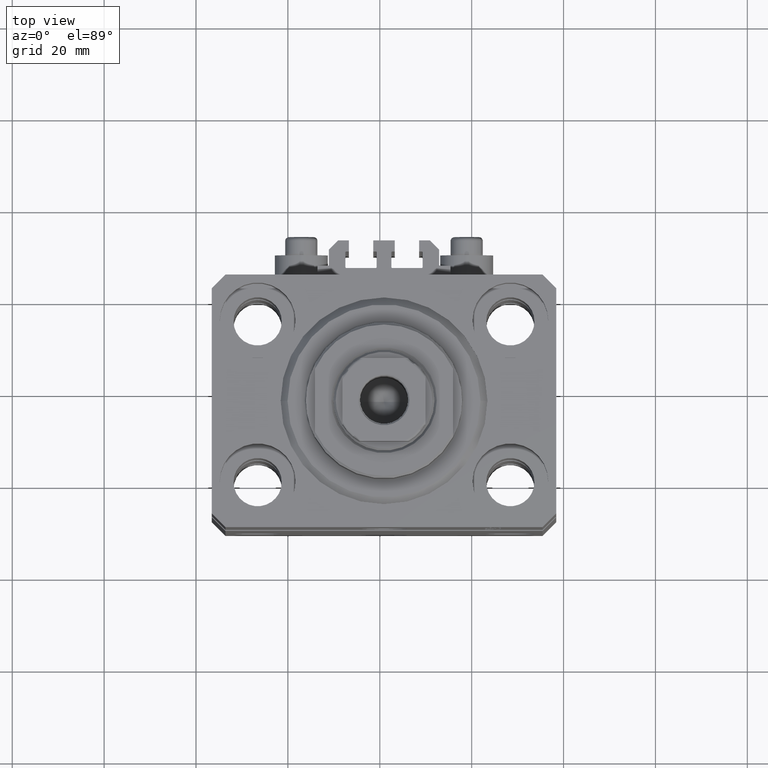
[diagram: clean part render]
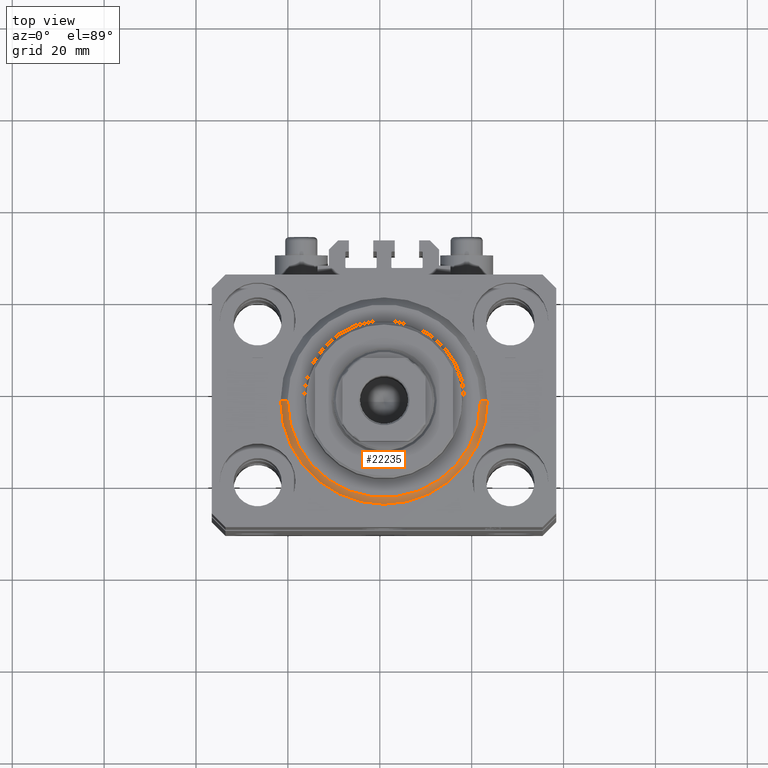
[diagram: same view with one face highlighted and labeled with its STEP entity id]
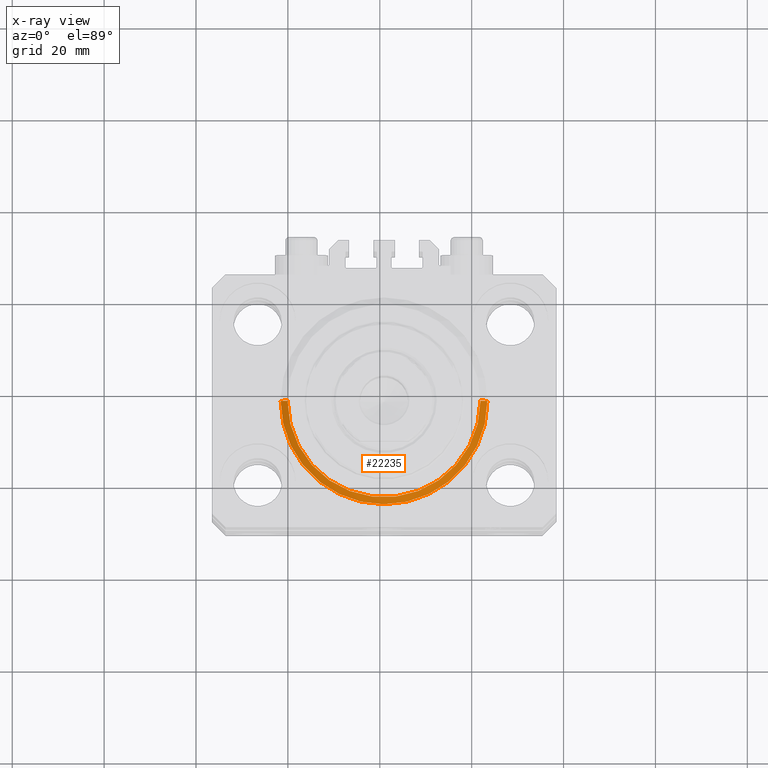
[diagram: x-ray of the same camera — body ghosted, the highlighted face saturated]
A machine part, top view. The second image highlights one B-rep face of the part: STEP entity #22235.
The next image is the same camera in x-ray: the body ghosted, the highlighted face saturated — about 0% of this face is hidden behind the body in this view.
In plain terms, the highlighted conical surface has half-angle 45 deg.
Its self-contained STEP definition (entity closure, byte-faithful):
#1001 = CARTESIAN_POINT ( 'NONE',  ( 0.000000000000000000, 0.000000000000000000, 0.000000000000000000 ) ) ;
#1366 = DIRECTION ( 'NONE',  ( 1.000000000000000000, 0.000000000000000000, 0.000000000000000000 ) ) ;
#2230 = EDGE_CURVE ( 'NONE', #19359, #36496, #31037, .T. ) ;
#2759 = CARTESIAN_POINT ( 'NONE',  ( 0.000000000000000000, 0.000000000000000000, 1.500000000000001332 ) ) ;
#3526 = VERTEX_POINT ( 'NONE', #43038 ) ;
#3732 = AXIS2_PLACEMENT_3D ( 'NONE', #2759, #16629, #20456 ) ;
#4497 = ORIENTED_EDGE ( 'NONE', *, *, #17810, .F. ) ;
#5689 = CARTESIAN_POINT ( 'NONE',  ( -22.50000000000000355, 0.000000000000000000, 1.500000000000001332 ) ) ;
#7672 = LINE ( 'NONE', #27197, #11998 ) ;
#8542 = EDGE_CURVE ( 'NONE', #19359, #3526, #7672, .T. ) ;
#9711 = AXIS2_PLACEMENT_3D ( 'NONE', #45174, #15709, #1366 ) ;
#9823 = CARTESIAN_POINT ( 'NONE',  ( -22.50000000000000355, 2.755455298081545172E-15, 1.500000000000001332 ) ) ;
#11998 = VECTOR ( 'NONE', #33526, 1000.000000000000114 ) ;
#15574 = DIRECTION ( 'NONE',  ( -0.000000000000000000, -0.000000000000000000, -1.000000000000000000 ) ) ;
#15709 = DIRECTION ( 'NONE',  ( -0.000000000000000000, -0.000000000000000000, 1.000000000000000000 ) ) ;
#16629 = DIRECTION ( 'NONE',  ( -0.000000000000000000, -0.000000000000000000, 1.000000000000000000 ) ) ;
#17374 = EDGE_CURVE ( 'NONE', #36496, #37007, #20811, .T. ) ;
#17588 = ORIENTED_EDGE ( 'NONE', *, *, #8542, .T. ) ;
#17810 = EDGE_CURVE ( 'NONE', #37007, #3526, #38020, .T. ) ;
#19359 = VERTEX_POINT ( 'NONE', #28981 ) ;
#20025 = ORIENTED_EDGE ( 'NONE', *, *, #2230, .F. ) ;
#20456 = DIRECTION ( 'NONE',  ( 1.000000000000000000, 0.000000000000000000, 0.000000000000000000 ) ) ;
#20811 = LINE ( 'NONE', #9823, #35992 ) ;
#20924 = FACE_OUTER_BOUND ( 'NONE', #24308, .T. ) ;
#22235 = ADVANCED_FACE ( 'NONE', ( #20924 ), #27433, .T. ) ;
#24118 = AXIS2_PLACEMENT_3D ( 'NONE', #1001, #15574, #26572 ) ;
#24308 = EDGE_LOOP ( 'NONE', ( #41314, #20025, #17588, #4497 ) ) ;
#25611 = CARTESIAN_POINT ( 'NONE',  ( -20.99999999999998934, 2.663606788145492628E-15, 0.000000000000000000 ) ) ;
#26572 = DIRECTION ( 'NONE',  ( 1.000000000000000000, 0.000000000000000000, 0.000000000000000000 ) ) ;
#27197 = CARTESIAN_POINT ( 'NONE',  ( 22.50000000000000355, 0.000000000000000000, 1.500000000000001332 ) ) ;
#27433 = CONICAL_SURFACE ( 'NONE', #3732, 22.50000000000000355, 0.7853981633974517207 ) ;
#28981 = CARTESIAN_POINT ( 'NONE',  ( 20.99999999999998934, 0.000000000000000000, 0.000000000000000000 ) ) ;
#31037 = CIRCLE ( 'NONE', #24118, 20.99999999999998934 ) ;
#33526 = DIRECTION ( 'NONE',  ( 0.7071067811865500152, 0.000000000000000000, 0.7071067811865451302 ) ) ;
#35992 = VECTOR ( 'NONE', #38573, 1000.000000000000114 ) ;
#36496 = VERTEX_POINT ( 'NONE', #25611 ) ;
#37007 = VERTEX_POINT ( 'NONE', #5689 ) ;
#38020 = CIRCLE ( 'NONE', #9711, 22.50000000000000355 ) ;
#38573 = DIRECTION ( 'NONE',  ( -0.7071067811865500152, 8.659560562354963673E-17, 0.7071067811865451302 ) ) ;
#41314 = ORIENTED_EDGE ( 'NONE', *, *, #17374, .F. ) ;
#43038 = CARTESIAN_POINT ( 'NONE',  ( 22.50000000000000355, 2.755455298081545172E-15, 1.500000000000001332 ) ) ;
#45174 = CARTESIAN_POINT ( 'NONE',  ( 0.000000000000000000, 0.000000000000000000, 1.500000000000001332 ) ) ;